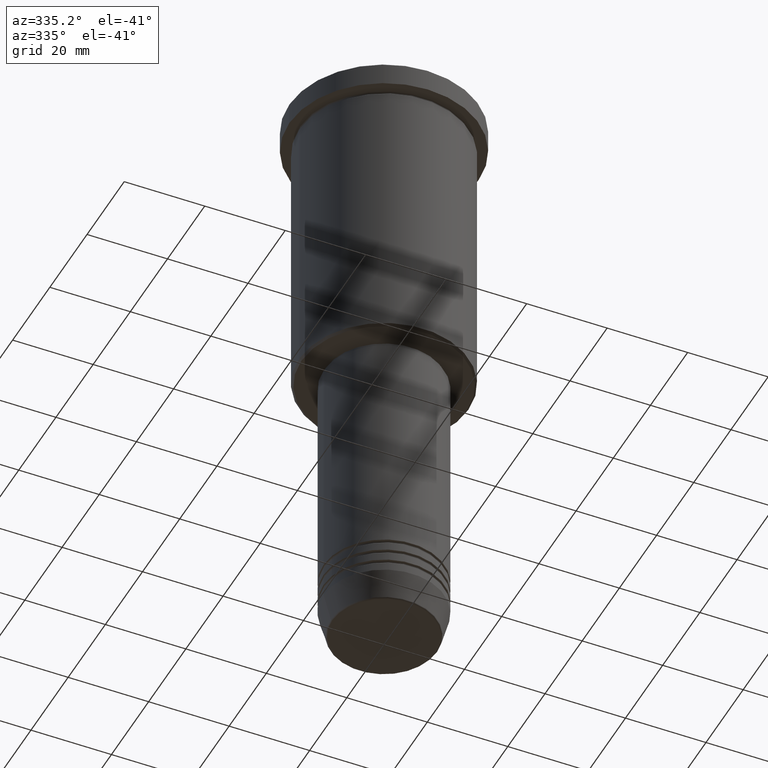
[diagram: clean part render]
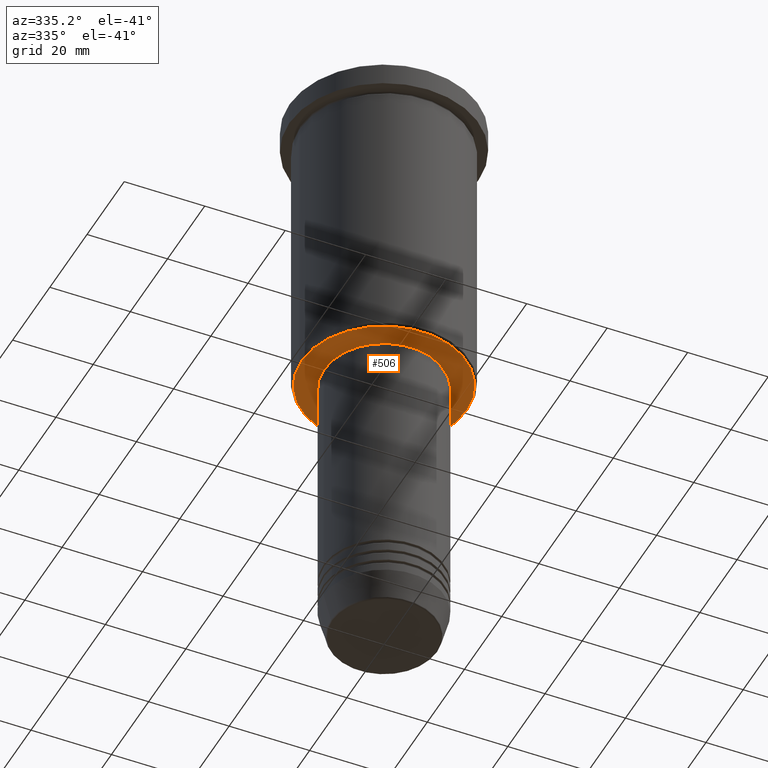
[diagram: same view with one face highlighted and labeled with its STEP entity id]
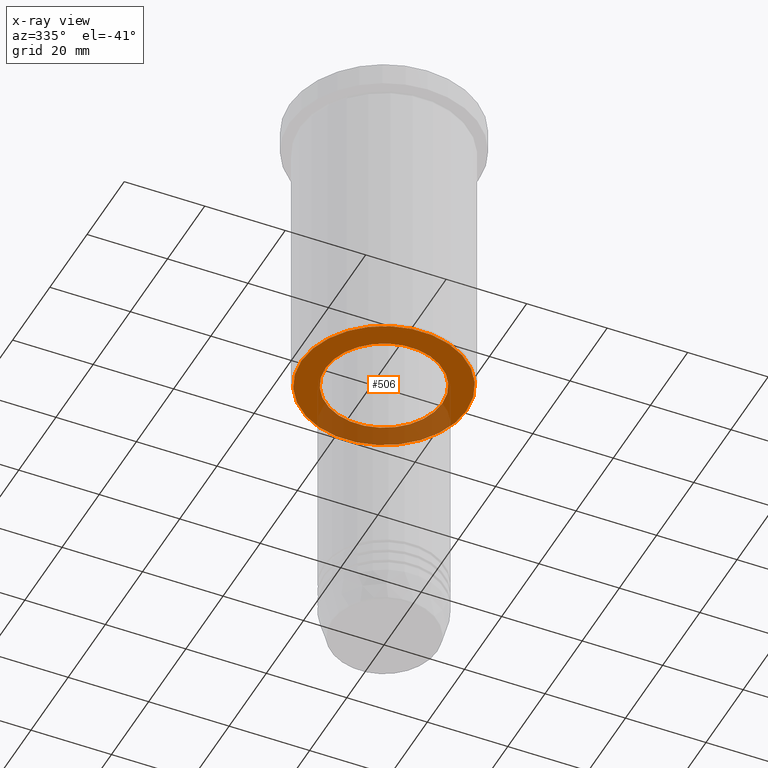
[diagram: x-ray of the same camera — body ghosted, the highlighted face saturated]
A machine part, auxiliary view. The second image highlights one B-rep face of the part: STEP entity #506.
The next image is the same camera in x-ray: the body ghosted, the highlighted face saturated — about 31% of this face is hidden behind the body in this view.
In plain terms, the highlighted planar face has unit normal (0, 0, -1).
Its self-contained STEP definition (entity closure, byte-faithful):
#26 = CARTESIAN_POINT ( 'NONE',  ( -20.50000000000000355, 2.541142108230758269E-15, -75.99999999999998579 ) ) ;
#28 = DIRECTION ( 'NONE',  ( 0.000000000000000000, 0.000000000000000000, -1.000000000000000000 ) ) ;
#56 = DIRECTION ( 'NONE',  ( -0.000000000000000000, -0.000000000000000000, 1.000000000000000000 ) ) ;
#60 = ORIENTED_EDGE ( 'NONE', *, *, #250, .T. ) ;
#70 = DIRECTION ( 'NONE',  ( -0.000000000000000000, -0.000000000000000000, 1.000000000000000000 ) ) ;
#98 = CARTESIAN_POINT ( 'NONE',  ( 20.50000000000000355, 0.000000000000000000, -75.99999999999998579 ) ) ;
#130 = CARTESIAN_POINT ( 'NONE',  ( 0.000000000000000000, 0.000000000000000000, -75.99999999999998579 ) ) ;
#150 = CARTESIAN_POINT ( 'NONE',  ( 0.000000000000000000, 0.000000000000000000, -75.99999999999998579 ) ) ;
#217 = ORIENTED_EDGE ( 'NONE', *, *, #1093, .T. ) ;
#226 = ORIENTED_EDGE ( 'NONE', *, *, #457, .T. ) ;
#250 = EDGE_CURVE ( 'NONE', #513, #910, #1104, .T. ) ;
#252 = EDGE_LOOP ( 'NONE', ( #217, #456 ) ) ;
#267 = EDGE_LOOP ( 'NONE', ( #226, #60 ) ) ;
#289 = AXIS2_PLACEMENT_3D ( 'NONE', #294, #900, #654 ) ;
#294 = CARTESIAN_POINT ( 'NONE',  ( 0.000000000000000000, 0.000000000000000000, -75.99999999999998579 ) ) ;
#376 = EDGE_CURVE ( 'NONE', #596, #1019, #770, .T. ) ;
#456 = ORIENTED_EDGE ( 'NONE', *, *, #376, .T. ) ;
#457 = EDGE_CURVE ( 'NONE', #910, #513, #620, .T. ) ;
#502 = DIRECTION ( 'NONE',  ( -1.000000000000000000, 0.000000000000000000, 0.000000000000000000 ) ) ;
#506 = ADVANCED_FACE ( 'NONE', ( #741, #1092 ), #824, .T. ) ;
#513 = VERTEX_POINT ( 'NONE', #26 ) ;
#542 = DIRECTION ( 'NONE',  ( -1.000000000000000000, 0.000000000000000000, -0.000000000000000000 ) ) ;
#566 = CARTESIAN_POINT ( 'NONE',  ( 0.000000000000000000, 21.00000000000000000, -75.99999999999998579 ) ) ;
#567 = AXIS2_PLACEMENT_3D ( 'NONE', #130, #28, #502 ) ;
#596 = VERTEX_POINT ( 'NONE', #666 ) ;
#620 = CIRCLE ( 'NONE', #289, 20.50000000000000355 ) ;
#654 = DIRECTION ( 'NONE',  ( -1.000000000000000000, 0.000000000000000000, 0.000000000000000000 ) ) ;
#666 = CARTESIAN_POINT ( 'NONE',  ( -14.49999999999999822, 1.775737858763662015E-15, -75.99999999999998579 ) ) ;
#741 = FACE_OUTER_BOUND ( 'NONE', #267, .T. ) ;
#754 = AXIS2_PLACEMENT_3D ( 'NONE', #566, #1001, #542 ) ;
#758 = AXIS2_PLACEMENT_3D ( 'NONE', #150, #56, #944 ) ;
#770 = CIRCLE ( 'NONE', #860, 14.49999999999999822 ) ;
#824 = PLANE ( 'NONE',  #754 ) ;
#860 = AXIS2_PLACEMENT_3D ( 'NONE', #931, #70, #1060 ) ;
#893 = CIRCLE ( 'NONE', #758, 14.49999999999999822 ) ;
#900 = DIRECTION ( 'NONE',  ( 0.000000000000000000, 0.000000000000000000, -1.000000000000000000 ) ) ;
#910 = VERTEX_POINT ( 'NONE', #98 ) ;
#931 = CARTESIAN_POINT ( 'NONE',  ( 0.000000000000000000, 0.000000000000000000, -75.99999999999998579 ) ) ;
#944 = DIRECTION ( 'NONE',  ( 1.000000000000000000, 0.000000000000000000, 0.000000000000000000 ) ) ;
#1001 = DIRECTION ( 'NONE',  ( 0.000000000000000000, 0.000000000000000000, -1.000000000000000000 ) ) ;
#1019 = VERTEX_POINT ( 'NONE', #1034 ) ;
#1034 = CARTESIAN_POINT ( 'NONE',  ( 14.49999999999999822, 0.000000000000000000, -75.99999999999998579 ) ) ;
#1060 = DIRECTION ( 'NONE',  ( 1.000000000000000000, 0.000000000000000000, 0.000000000000000000 ) ) ;
#1092 = FACE_BOUND ( 'NONE', #252, .T. ) ;
#1093 = EDGE_CURVE ( 'NONE', #1019, #596, #893, .T. ) ;
#1104 = CIRCLE ( 'NONE', #567, 20.50000000000000355 ) ;